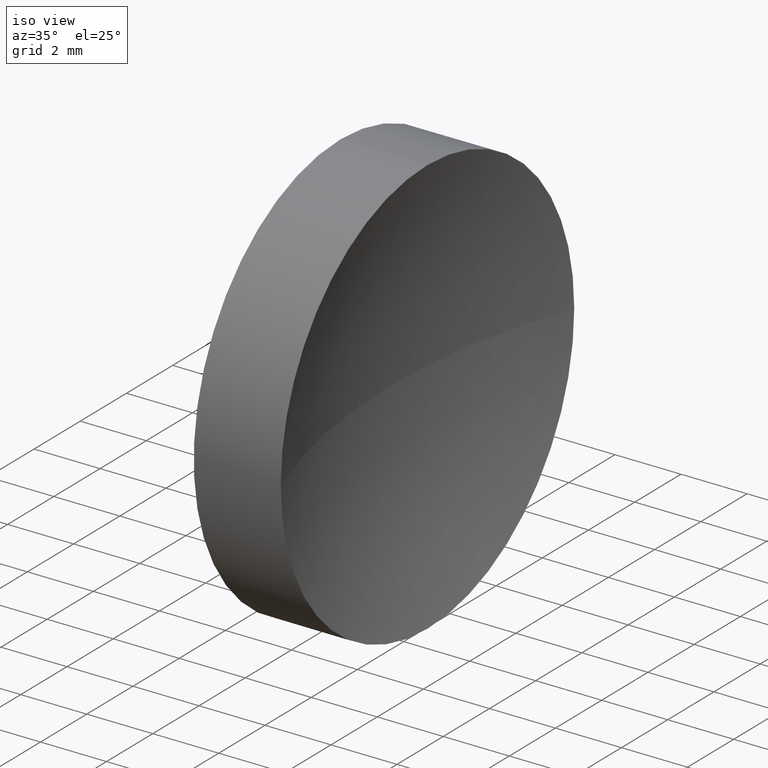
[diagram: clean part render]
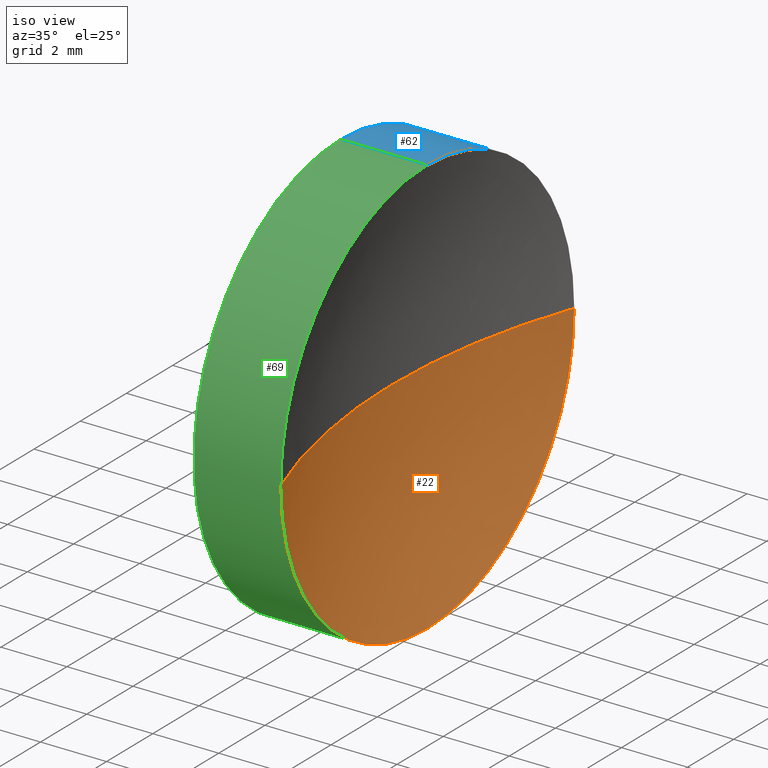
[diagram: same view with three faces highlighted in distinct colors, each labeled with its STEP entity id]
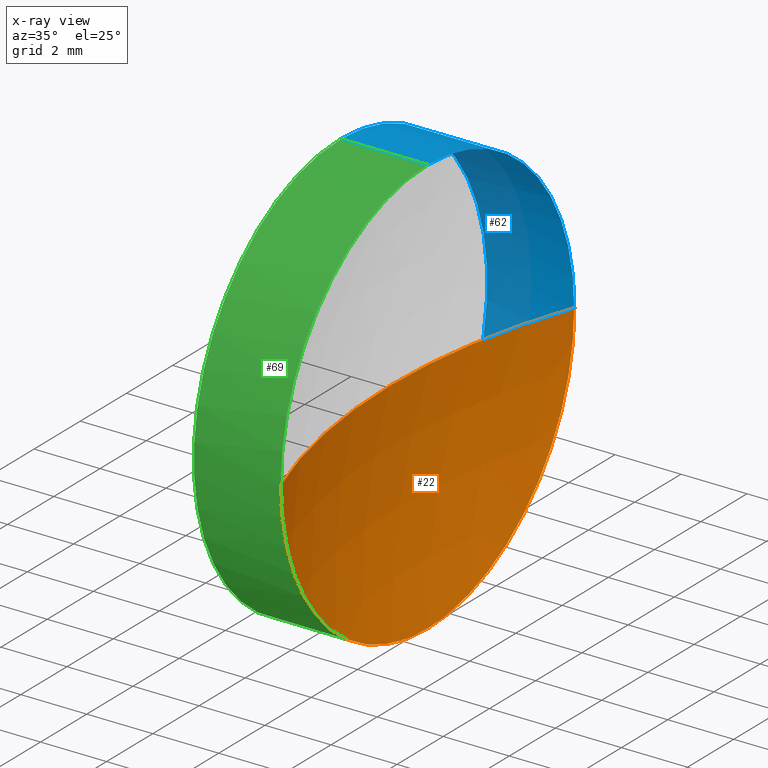
[diagram: x-ray of the same camera — body ghosted, the three highlighted faces saturated]
A machine part, iso view with three faces highlighted in distinct colors.
The next image is the same camera in x-ray (body ghosted, the three faces saturated) — at least one of them is partly hidden behind the body in this view.
Their STEP definitions:

[orange] entity #22 — the highlighted spherical surface has radius 18.34 mm.
#12 = VERTEX_POINT ( 'NONE', #186 ) ;
#22 = ADVANCED_FACE ( 'NONE', ( #146 ), #127, .F. ) ;
#23 = VERTEX_POINT ( 'NONE', #167 ) ;
#24 = CARTESIAN_POINT ( 'NONE',  ( 67.59370850148246700, 28.47759563463748100, 0.0000000000000000000 ) ) ;
#34 = CIRCLE ( 'NONE', #139, 6.350000000000008500 ) ;
#40 = DIRECTION ( 'NONE',  ( 0.0000000000000000000, 0.0000000000000000000, 1.000000000000000000 ) ) ;
#42 = DIRECTION ( 'NONE',  ( 0.0000000000000000000, -1.000000000000000000, -1.224646799147353000E-016 ) ) ;
#43 = VERTEX_POINT ( 'NONE', #137 ) ;
#48 = DIRECTION ( 'NONE',  ( -1.000000000000000000, -0.0000000000000000000, -0.0000000000000000000 ) ) ;
#50 = EDGE_CURVE ( 'NONE', #12, #23, #140, .T. ) ;
#57 = DIRECTION ( 'NONE',  ( 0.0000000000000000000, 0.0000000000000000000, 1.000000000000000000 ) ) ;
#58 = CARTESIAN_POINT ( 'NONE',  ( 50.38809604507743200, 28.47759563463748100, 0.0000000000000000000 ) ) ;
#59 = DIRECTION ( 'NONE',  ( 0.0000000000000000000, -1.224646799147353200E-016, 1.000000000000000000 ) ) ;
#65 = CIRCLE ( 'NONE', #178, 18.34000000000000000 ) ;
#68 = EDGE_CURVE ( 'NONE', #12, #112, #65, .T. ) ;
#70 = DIRECTION ( 'NONE',  ( -1.000000000000000000, 0.0000000000000000000, 0.0000000000000000000 ) ) ;
#74 = ORIENTED_EDGE ( 'NONE', *, *, #50, .F. ) ;
#87 = CARTESIAN_POINT ( 'NONE',  ( 67.59370850148246700, 28.47759563463748100, 0.0000000000000000000 ) ) ;
#94 = ORIENTED_EDGE ( 'NONE', *, *, #99, .F. ) ;
#99 = EDGE_CURVE ( 'NONE', #43, #112, #118, .T. ) ;
#102 = CARTESIAN_POINT ( 'NONE',  ( 50.38809604507743200, 28.47759563463748100, 0.0000000000000000000 ) ) ;
#108 = DIRECTION ( 'NONE',  ( -1.000000000000000000, -0.0000000000000000000, -0.0000000000000000000 ) ) ;
#112 = VERTEX_POINT ( 'NONE', #163 ) ;
#118 = CIRCLE ( 'NONE', #183, 18.33999999999999600 ) ;
#121 = DIRECTION ( 'NONE',  ( 0.0000000000000000000, 0.0000000000000000000, -1.000000000000000000 ) ) ;
#124 = DIRECTION ( 'NONE',  ( 0.0000000000000000000, -1.000000000000000000, 0.0000000000000000000 ) ) ;
#126 = AXIS2_PLACEMENT_3D ( 'NONE', #58, #108, #57 ) ;
#127 = SPHERICAL_SURFACE ( 'NONE', #161, 18.34000000000000000 ) ;
#135 = EDGE_CURVE ( 'NONE', #23, #43, #34, .T. ) ;
#137 = CARTESIAN_POINT ( 'NONE',  ( 50.38809604507743200, 22.12759563463748000, 0.0000000000000000000 ) ) ;
#138 = CARTESIAN_POINT ( 'NONE',  ( 67.59370850148246700, 28.47759563463748100, 0.0000000000000000000 ) ) ;
#139 = AXIS2_PLACEMENT_3D ( 'NONE', #102, #48, #159 ) ;
#140 = CIRCLE ( 'NONE', #126, 6.350000000000008500 ) ;
#146 = FACE_OUTER_BOUND ( 'NONE', #171, .T. ) ;
#149 = ORIENTED_EDGE ( 'NONE', *, *, #135, .F. ) ;
#155 = ORIENTED_EDGE ( 'NONE', *, *, #68, .T. ) ;
#159 = DIRECTION ( 'NONE',  ( 0.0000000000000000000, 0.0000000000000000000, 1.000000000000000000 ) ) ;
#161 = AXIS2_PLACEMENT_3D ( 'NONE', #24, #40, #124 ) ;
#163 = CARTESIAN_POINT ( 'NONE',  ( 49.25370850148247100, 28.47759563463748100, 0.0000000000000000000 ) ) ;
#167 = CARTESIAN_POINT ( 'NONE',  ( 50.38809604507743200, 28.47759563463748100, -6.350000000000007600 ) ) ;
#171 = EDGE_LOOP ( 'NONE', ( #74, #155, #94, #149 ) ) ;
#178 = AXIS2_PLACEMENT_3D ( 'NONE', #138, #59, #42 ) ;
#183 = AXIS2_PLACEMENT_3D ( 'NONE', #87, #121, #70 ) ;
#186 = CARTESIAN_POINT ( 'NONE',  ( 50.38809604507743200, 34.82759563463748300, 7.776507174585693100E-016 ) ) ;

[blue] entity #62 — the highlighted cylindrical surface (partial cylindrical patch) has radius 6.35 mm, axis along (-1, -0, -0).
#4 = CARTESIAN_POINT ( 'NONE',  ( 47.75370850148247100, 28.47759563463748100, 6.350000000000001400 ) ) ;
#9 = VERTEX_POINT ( 'NONE', #11 ) ;
#11 = CARTESIAN_POINT ( 'NONE',  ( 47.75370850148247100, 28.47759563463748100, -6.350000000000001400 ) ) ;
#12 = VERTEX_POINT ( 'NONE', #186 ) ;
#18 = ORIENTED_EDGE ( 'NONE', *, *, #148, .T. ) ;
#21 = CIRCLE ( 'NONE', #119, 6.350000000000001400 ) ;
#23 = VERTEX_POINT ( 'NONE', #167 ) ;
#25 = DIRECTION ( 'NONE',  ( 0.0000000000000000000, 0.0000000000000000000, 1.000000000000000000 ) ) ;
#26 = DIRECTION ( 'NONE',  ( -1.000000000000000000, -0.0000000000000000000, -0.0000000000000000000 ) ) ;
#27 = EDGE_CURVE ( 'NONE', #152, #9, #21, .T. ) ;
#49 = LINE ( 'NONE', #117, #96 ) ;
#50 = EDGE_CURVE ( 'NONE', #12, #23, #140, .T. ) ;
#55 = LINE ( 'NONE', #72, #160 ) ;
#57 = DIRECTION ( 'NONE',  ( 0.0000000000000000000, 0.0000000000000000000, 1.000000000000000000 ) ) ;
#58 = CARTESIAN_POINT ( 'NONE',  ( 50.38809604507743200, 28.47759563463748100, 0.0000000000000000000 ) ) ;
#62 = ADVANCED_FACE ( 'NONE', ( #158 ), #162, .T. ) ;
#67 = EDGE_CURVE ( 'NONE', #125, #152, #55, .T. ) ;
#72 = CARTESIAN_POINT ( 'NONE',  ( 44.78209190302423800, 28.47759563463748100, 6.350000000000005000 ) ) ;
#78 = DIRECTION ( 'NONE',  ( -1.000000000000000000, -0.0000000000000000000, -0.0000000000000000000 ) ) ;
#80 = AXIS2_PLACEMENT_3D ( 'NONE', #109, #26, #150 ) ;
#81 = DIRECTION ( 'NONE',  ( -1.000000000000000000, -0.0000000000000000000, -0.0000000000000000000 ) ) ;
#88 = AXIS2_PLACEMENT_3D ( 'NONE', #143, #78, #174 ) ;
#96 = VECTOR ( 'NONE', #81, 1000.000000000000000 ) ;
#98 = ORIENTED_EDGE ( 'NONE', *, *, #67, .F. ) ;
#100 = ORIENTED_EDGE ( 'NONE', *, *, #50, .T. ) ;
#108 = DIRECTION ( 'NONE',  ( -1.000000000000000000, -0.0000000000000000000, -0.0000000000000000000 ) ) ;
#109 = CARTESIAN_POINT ( 'NONE',  ( 44.78209190302423800, 28.47759563463748100, 0.0000000000000000000 ) ) ;
#110 = CARTESIAN_POINT ( 'NONE',  ( 47.75370850148247100, 28.47759563463748100, 0.0000000000000000000 ) ) ;
#111 = CARTESIAN_POINT ( 'NONE',  ( 50.38809604507743200, 28.47759563463748100, 6.350000000000007600 ) ) ;
#117 = CARTESIAN_POINT ( 'NONE',  ( 44.78209190302423800, 28.47759563463748100, -6.350000000000005000 ) ) ;
#119 = AXIS2_PLACEMENT_3D ( 'NONE', #110, #165, #25 ) ;
#125 = VERTEX_POINT ( 'NONE', #111 ) ;
#126 = AXIS2_PLACEMENT_3D ( 'NONE', #58, #108, #57 ) ;
#133 = EDGE_CURVE ( 'NONE', #23, #9, #49, .T. ) ;
#136 = EDGE_LOOP ( 'NONE', ( #100, #164, #181, #98, #18 ) ) ;
#140 = CIRCLE ( 'NONE', #126, 6.350000000000008500 ) ;
#143 = CARTESIAN_POINT ( 'NONE',  ( 50.38809604507743200, 28.47759563463748100, 0.0000000000000000000 ) ) ;
#148 = EDGE_CURVE ( 'NONE', #125, #12, #185, .T. ) ;
#150 = DIRECTION ( 'NONE',  ( 0.0000000000000000000, 0.0000000000000000000, 1.000000000000000000 ) ) ;
#152 = VERTEX_POINT ( 'NONE', #4 ) ;
#158 = FACE_OUTER_BOUND ( 'NONE', #136, .T. ) ;
#160 = VECTOR ( 'NONE', #182, 1000.000000000000000 ) ;
#162 = CYLINDRICAL_SURFACE ( 'NONE', #80, 6.350000000000005000 ) ;
#164 = ORIENTED_EDGE ( 'NONE', *, *, #133, .T. ) ;
#165 = DIRECTION ( 'NONE',  ( -1.000000000000000000, -0.0000000000000000000, -0.0000000000000000000 ) ) ;
#167 = CARTESIAN_POINT ( 'NONE',  ( 50.38809604507743200, 28.47759563463748100, -6.350000000000007600 ) ) ;
#174 = DIRECTION ( 'NONE',  ( 0.0000000000000000000, 0.0000000000000000000, 1.000000000000000000 ) ) ;
#181 = ORIENTED_EDGE ( 'NONE', *, *, #27, .F. ) ;
#182 = DIRECTION ( 'NONE',  ( -1.000000000000000000, -0.0000000000000000000, -0.0000000000000000000 ) ) ;
#185 = CIRCLE ( 'NONE', #88, 6.350000000000008500 ) ;
#186 = CARTESIAN_POINT ( 'NONE',  ( 50.38809604507743200, 34.82759563463748300, 7.776507174585693100E-016 ) ) ;

[green] entity #69 — the highlighted cylindrical surface (partial cylindrical patch) has radius 6.35 mm, axis along (-1, -0, -0).
#1 = FACE_OUTER_BOUND ( 'NONE', #44, .T. ) ;
#4 = CARTESIAN_POINT ( 'NONE',  ( 47.75370850148247100, 28.47759563463748100, 6.350000000000001400 ) ) ;
#8 = CIRCLE ( 'NONE', #123, 6.350000000000008500 ) ;
#9 = VERTEX_POINT ( 'NONE', #11 ) ;
#11 = CARTESIAN_POINT ( 'NONE',  ( 47.75370850148247100, 28.47759563463748100, -6.350000000000001400 ) ) ;
#17 = EDGE_CURVE ( 'NONE', #43, #125, #8, .T. ) ;
#23 = VERTEX_POINT ( 'NONE', #167 ) ;
#28 = CARTESIAN_POINT ( 'NONE',  ( 50.38809604507743200, 28.47759563463748100, 0.0000000000000000000 ) ) ;
#34 = CIRCLE ( 'NONE', #139, 6.350000000000008500 ) ;
#37 = ORIENTED_EDGE ( 'NONE', *, *, #17, .T. ) ;
#39 = DIRECTION ( 'NONE',  ( 0.0000000000000000000, 0.0000000000000000000, 1.000000000000000000 ) ) ;
#43 = VERTEX_POINT ( 'NONE', #137 ) ;
#44 = EDGE_LOOP ( 'NONE', ( #114, #120, #37, #53, #89 ) ) ;
#48 = DIRECTION ( 'NONE',  ( -1.000000000000000000, -0.0000000000000000000, -0.0000000000000000000 ) ) ;
#49 = LINE ( 'NONE', #117, #96 ) ;
#53 = ORIENTED_EDGE ( 'NONE', *, *, #67, .T. ) ;
#55 = LINE ( 'NONE', #72, #160 ) ;
#67 = EDGE_CURVE ( 'NONE', #125, #152, #55, .T. ) ;
#69 = ADVANCED_FACE ( 'NONE', ( #1 ), #82, .T. ) ;
#72 = CARTESIAN_POINT ( 'NONE',  ( 44.78209190302423800, 28.47759563463748100, 6.350000000000005000 ) ) ;
#77 = CIRCLE ( 'NONE', #103, 6.350000000000001400 ) ;
#81 = DIRECTION ( 'NONE',  ( -1.000000000000000000, -0.0000000000000000000, -0.0000000000000000000 ) ) ;
#82 = CYLINDRICAL_SURFACE ( 'NONE', #172, 6.350000000000005000 ) ;
#86 = CARTESIAN_POINT ( 'NONE',  ( 44.78209190302423800, 28.47759563463748100, 0.0000000000000000000 ) ) ;
#89 = ORIENTED_EDGE ( 'NONE', *, *, #141, .F. ) ;
#96 = VECTOR ( 'NONE', #81, 1000.000000000000000 ) ;
#102 = CARTESIAN_POINT ( 'NONE',  ( 50.38809604507743200, 28.47759563463748100, 0.0000000000000000000 ) ) ;
#103 = AXIS2_PLACEMENT_3D ( 'NONE', #173, #128, #130 ) ;
#111 = CARTESIAN_POINT ( 'NONE',  ( 50.38809604507743200, 28.47759563463748100, 6.350000000000007600 ) ) ;
#114 = ORIENTED_EDGE ( 'NONE', *, *, #133, .F. ) ;
#117 = CARTESIAN_POINT ( 'NONE',  ( 44.78209190302423800, 28.47759563463748100, -6.350000000000005000 ) ) ;
#120 = ORIENTED_EDGE ( 'NONE', *, *, #135, .T. ) ;
#123 = AXIS2_PLACEMENT_3D ( 'NONE', #28, #151, #166 ) ;
#125 = VERTEX_POINT ( 'NONE', #111 ) ;
#128 = DIRECTION ( 'NONE',  ( -1.000000000000000000, -0.0000000000000000000, -0.0000000000000000000 ) ) ;
#130 = DIRECTION ( 'NONE',  ( 0.0000000000000000000, 0.0000000000000000000, 1.000000000000000000 ) ) ;
#133 = EDGE_CURVE ( 'NONE', #23, #9, #49, .T. ) ;
#135 = EDGE_CURVE ( 'NONE', #23, #43, #34, .T. ) ;
#137 = CARTESIAN_POINT ( 'NONE',  ( 50.38809604507743200, 22.12759563463748000, 0.0000000000000000000 ) ) ;
#139 = AXIS2_PLACEMENT_3D ( 'NONE', #102, #48, #159 ) ;
#141 = EDGE_CURVE ( 'NONE', #9, #152, #77, .T. ) ;
#151 = DIRECTION ( 'NONE',  ( -1.000000000000000000, -0.0000000000000000000, -0.0000000000000000000 ) ) ;
#152 = VERTEX_POINT ( 'NONE', #4 ) ;
#159 = DIRECTION ( 'NONE',  ( 0.0000000000000000000, 0.0000000000000000000, 1.000000000000000000 ) ) ;
#160 = VECTOR ( 'NONE', #182, 1000.000000000000000 ) ;
#166 = DIRECTION ( 'NONE',  ( 0.0000000000000000000, 0.0000000000000000000, 1.000000000000000000 ) ) ;
#167 = CARTESIAN_POINT ( 'NONE',  ( 50.38809604507743200, 28.47759563463748100, -6.350000000000007600 ) ) ;
#172 = AXIS2_PLACEMENT_3D ( 'NONE', #86, #184, #39 ) ;
#173 = CARTESIAN_POINT ( 'NONE',  ( 47.75370850148247100, 28.47759563463748100, 0.0000000000000000000 ) ) ;
#182 = DIRECTION ( 'NONE',  ( -1.000000000000000000, -0.0000000000000000000, -0.0000000000000000000 ) ) ;
#184 = DIRECTION ( 'NONE',  ( -1.000000000000000000, -0.0000000000000000000, -0.0000000000000000000 ) ) ;